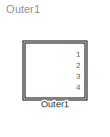
MODEL Outer1
KIND model
CONFIG AbsTol = auto
CONFIG FixedStep = auto
CONFIG MaxStep = auto
CONFIG MinStep = auto
CONFIG RelTol = 1e-3
CONFIG Solver = ode45
CONFIG SolverMode = Auto
CONFIG StartTime = 0.0
CONFIG StopTime = 10.0
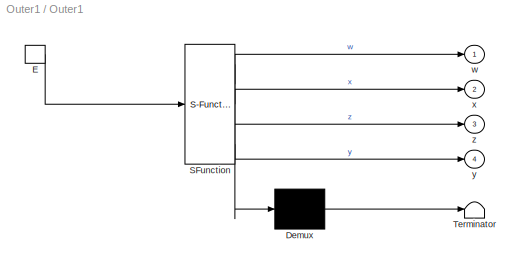
BLOCK [SubSystem] Outer1
  MaskDescription = Stateflow diagram
  MaskDisplay = plot(sf('Private','sfblk','xIcon'),sf('Private','sfblk','yIcon'));text(0.5,0,sf('Private', 'sfblk', 'tIcon'),'HorizontalAl','Center','VerticalAl','Bottom');
  MaskIconFrame = off
  MaskIconOpaque = off
  MaskIconRotate = none
  MaskIconUnits = autoscale
  MaskSelfModifiable = on
  MaskType = Stateflow
  Ports = [0, 4, 0, 1]
  TreatAsAtomicUnit = off
BLOCK [Demux] Outer1/ Demux 
  Outputs = 1
  Ports = [1, 1]
BLOCK [S-Function] Outer1/ SFunction 
  FunctionName = sf_sfun
  PortCounts = [1 5]
  Ports = [1, 5]
  Tag = Stateflow S-Function Outer1 1
BLOCK [Terminator] Outer1/ Terminator 
BLOCK [TriggerPort] Outer1/E
  Ports = [0, 1]
  ShowOutputPort = on
  TriggerType = either
BLOCK [Outport] Outer1/w
BLOCK [Outport] Outer1/x
  Port = 2
BLOCK [Outport] Outer1/y
  Port = 4
BLOCK [Outport] Outer1/z
  Port = 3
LINE Outer1/ Demux :1 -> Outer1/ Terminator :1
LINE Outer1/ SFunction :1 -> Outer1/ Demux :1
LINE Outer1/ SFunction :2 -> Outer1/w:1
LINE Outer1/ SFunction :3 -> Outer1/x:1
LINE Outer1/ SFunction :4 -> Outer1/z:1
LINE Outer1/ SFunction :5 -> Outer1/y:1
LINE Outer1/E:1 -> Outer1/ SFunction :1
CHART Outer1 states=1 transitions=2
  STATE_LABEL 'A/\\nen: z++;\\nex: w++;'
